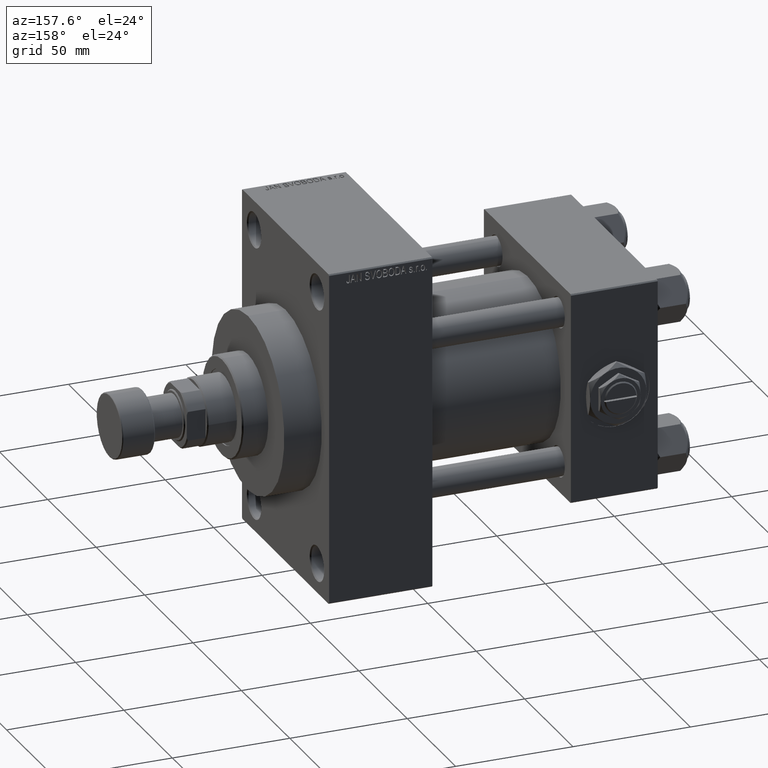
[diagram: clean part render]
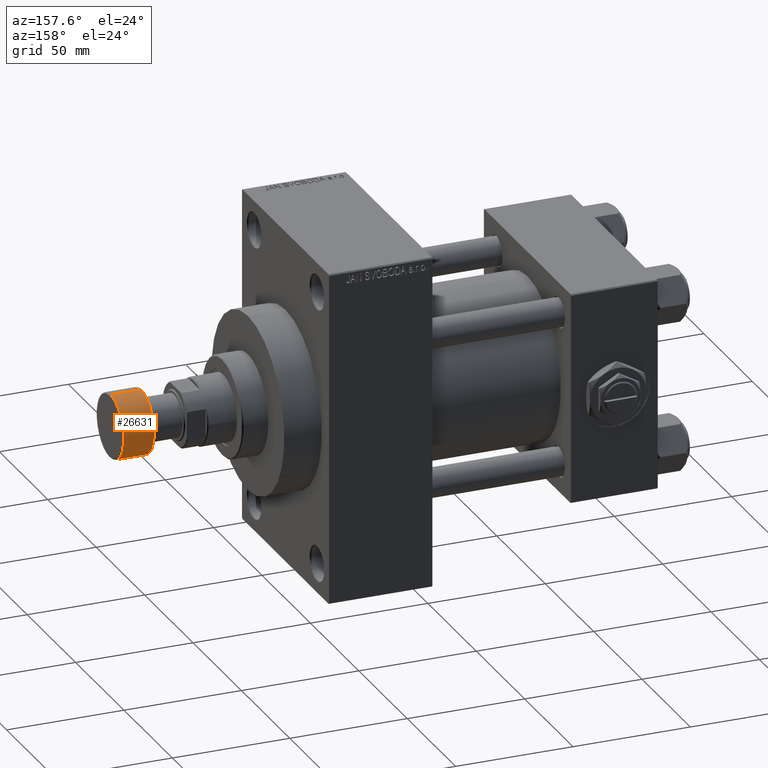
[diagram: same view with one face highlighted and labeled with its STEP entity id]
A machine part, auxiliary view. The second image highlights one B-rep face of the part: STEP entity #26631.
In plain terms, the highlighted cylindrical surface (edge-blend (fillet) strip) has radius 13.5 mm, axis along (1, 0, 0).
Its self-contained STEP definition (entity closure, byte-faithful):
#1435 = CARTESIAN_POINT ( 'NONE',  ( 0.000000000000000000, 0.000000000000000000, -0.5000000000000004441 ) ) ;
#2679 = CARTESIAN_POINT ( 'NONE',  ( 0.000000000000000000, 0.000000000000000000, -14.00000000000000000 ) ) ;
#2947 = ORIENTED_EDGE ( 'NONE', *, *, #48435, .F. ) ;
#3412 = DIRECTION ( 'NONE',  ( 1.000000000000000000, 0.000000000000000000, 0.000000000000000000 ) ) ;
#4686 = DIRECTION ( 'NONE',  ( 1.000000000000000000, 0.000000000000000000, 0.000000000000000000 ) ) ;
#4712 = VERTEX_POINT ( 'NONE', #30661 ) ;
#8370 = DIRECTION ( 'NONE',  ( 0.000000000000000000, 0.000000000000000000, 1.000000000000000000 ) ) ;
#10407 = LINE ( 'NONE', #47914, #29123 ) ;
#11131 = CYLINDRICAL_SURFACE ( 'NONE', #36430, 13.50000000000000000 ) ;
#11825 = ORIENTED_EDGE ( 'NONE', *, *, #35747, .T. ) ;
#13296 = VECTOR ( 'NONE', #32280, 1000.000000000000000 ) ;
#13900 = DIRECTION ( 'NONE',  ( 0.000000000000000000, 0.000000000000000000, 1.000000000000000000 ) ) ;
#17112 = ORIENTED_EDGE ( 'NONE', *, *, #23089, .T. ) ;
#17559 = EDGE_LOOP ( 'NONE', ( #46771, #17112, #11825, #2947 ) ) ;
#18230 = VERTEX_POINT ( 'NONE', #18374 ) ;
#18374 = CARTESIAN_POINT ( 'NONE',  ( -13.50000000000000000, 1.653273178848926867E-15, -13.50000000000000000 ) ) ;
#19907 = DIRECTION ( 'NONE',  ( -0.000000000000000000, -0.000000000000000000, -1.000000000000000000 ) ) ;
#21124 = VERTEX_POINT ( 'NONE', #34137 ) ;
#23089 = EDGE_CURVE ( 'NONE', #18230, #21124, #10407, .T. ) ;
#23348 = AXIS2_PLACEMENT_3D ( 'NONE', #1435, #19907, #4686 ) ;
#25406 = FACE_OUTER_BOUND ( 'NONE', #17559, .T. ) ;
#26577 = DIRECTION ( 'NONE',  ( 0.000000000000000000, 0.000000000000000000, 1.000000000000000000 ) ) ;
#26631 = ADVANCED_FACE ( 'NONE', ( #25406 ), #11131, .T. ) ;
#27620 = CARTESIAN_POINT ( 'NONE',  ( 0.000000000000000000, 0.000000000000000000, -13.50000000000000000 ) ) ;
#28305 = CIRCLE ( 'NONE', #49047, 13.50000000000000000 ) ;
#29123 = VECTOR ( 'NONE', #26577, 1000.000000000000000 ) ;
#30661 = CARTESIAN_POINT ( 'NONE',  ( 13.50000000000000000, 0.000000000000000000, -13.50000000000000000 ) ) ;
#32280 = DIRECTION ( 'NONE',  ( 0.000000000000000000, 0.000000000000000000, 1.000000000000000000 ) ) ;
#34137 = CARTESIAN_POINT ( 'NONE',  ( -13.50000000000000000, 1.653273178848926867E-15, -0.5000000000000004441 ) ) ;
#35025 = LINE ( 'NONE', #39262, #13296 ) ;
#35352 = DIRECTION ( 'NONE',  ( 1.000000000000000000, 0.000000000000000000, 0.000000000000000000 ) ) ;
#35747 = EDGE_CURVE ( 'NONE', #21124, #37125, #44139, .T. ) ;
#36430 = AXIS2_PLACEMENT_3D ( 'NONE', #2679, #13900, #3412 ) ;
#37125 = VERTEX_POINT ( 'NONE', #37204 ) ;
#37204 = CARTESIAN_POINT ( 'NONE',  ( 13.50000000000000000, 0.000000000000000000, -0.5000000000000004441 ) ) ;
#39262 = CARTESIAN_POINT ( 'NONE',  ( 13.50000000000000000, 0.000000000000000000, -14.00000000000000000 ) ) ;
#39381 = EDGE_CURVE ( 'NONE', #4712, #18230, #28305, .T. ) ;
#44139 = CIRCLE ( 'NONE', #23348, 13.50000000000000000 ) ;
#46771 = ORIENTED_EDGE ( 'NONE', *, *, #39381, .T. ) ;
#47914 = CARTESIAN_POINT ( 'NONE',  ( -13.50000000000000000, 1.653273178848926867E-15, -14.00000000000000000 ) ) ;
#48435 = EDGE_CURVE ( 'NONE', #4712, #37125, #35025, .T. ) ;
#49047 = AXIS2_PLACEMENT_3D ( 'NONE', #27620, #8370, #35352 ) ;